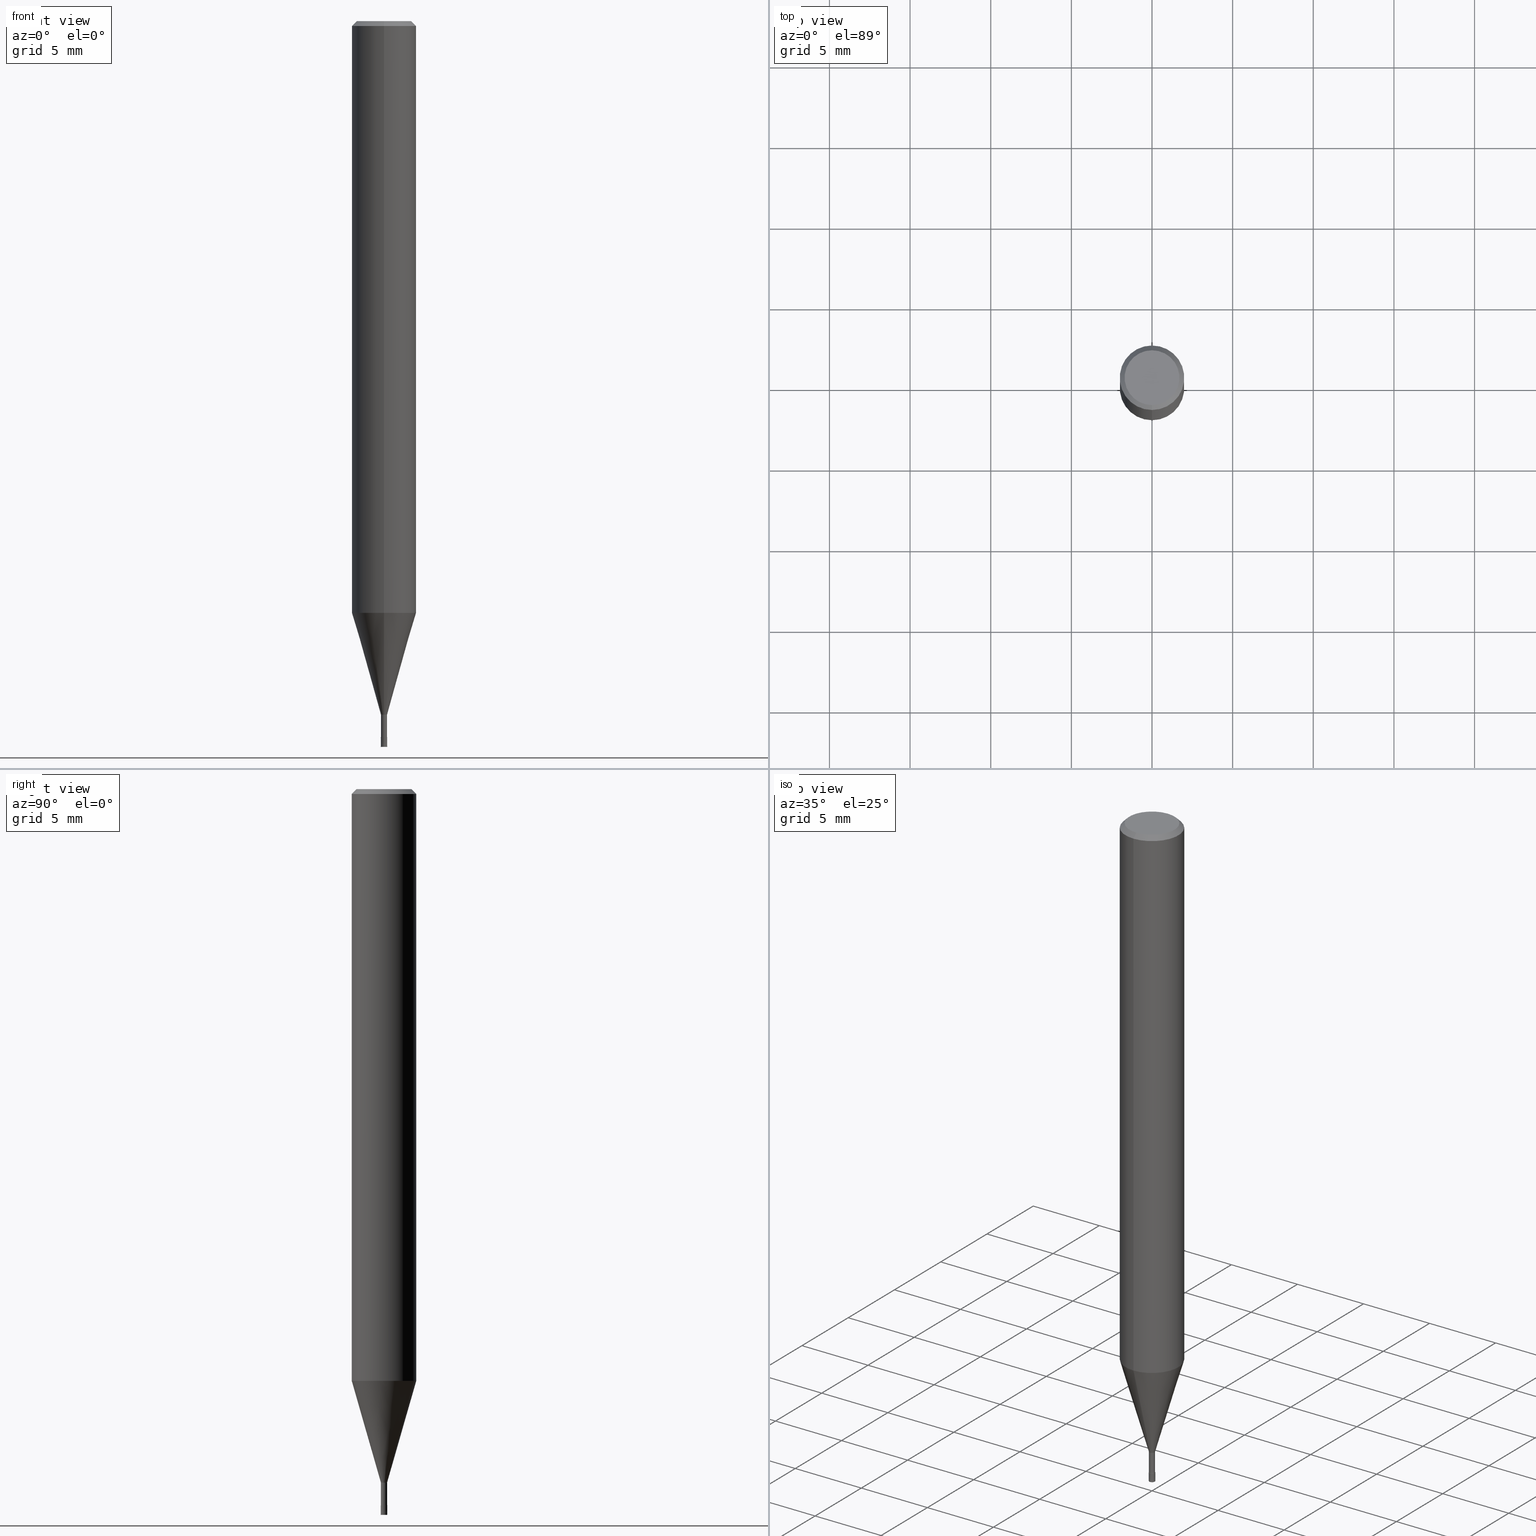
[diagram: canonical four-view strip — front | top / right | iso, engineering-drawing reading convention]
A machine part, canonical four-view strip (front | top / right | iso — engineering-drawing reading convention). The complete STEP part file that produces these views, byte-faithful:
ISO-10303-21;
HEADER;
FILE_DESCRIPTION(('no description'),'unknown implementation level');
FILE_NAME('HLS2004-020-Huellk.stp','  ',('CIMSOURCE GmbH'),('CADClick - KiM GmbH - www.kimweb.de'),'unknown preprocess','ACIS','unknown authorization');
FILE_SCHEMA(('automotive_design'));
ENDSEC;
DATA;
#1=MECHANICAL_DESIGN_GEOMETRIC_PRESENTATION_REPRESENTATION(' ',(#14,#15,#16,#17,#18,#19,#20,#21,#22,#23,#24,#25,#26,#27,#28,#29,#30,#31,#32,#33,#34,#35,#36,#37,#38,#39,#40,#41,#42,#43,#44,#45,#46,#47,#48,#49,#50,#51,#52,#53,#54,#55,#56,#57,#58,#59,#60,#61,#62,#63,#64,#65,#66,#67,#68,#69,#70,#71,#72),#10);
#2=PRODUCT_DEFINITION_CONTEXT('',#73,'design');
#3=APPLICATION_PROTOCOL_DEFINITION('INTERNATIONAL STANDARD','automotive_design',1994,#73);
#4=PRODUCT_CATEGORY_RELATIONSHIP('NONE','NONE',#74,#75);
#5=SHAPE_DEFINITION_REPRESENTATION(#76,#77);
#6=PRODUCT_DEFINITION_CONTEXT('',#78,'design');
#7=APPLICATION_PROTOCOL_DEFINITION('INTERNATIONAL STANDARD','automotive_design',1994,#78);
#8=PRODUCT_CATEGORY_RELATIONSHIP('NONE','NONE',#79,#80);
#9=SHAPE_DEFINITION_REPRESENTATION(#81,#82);
#10= (GEOMETRIC_REPRESENTATION_CONTEXT(3)GLOBAL_UNCERTAINTY_ASSIGNED_CONTEXT((#85))GLOBAL_UNIT_ASSIGNED_CONTEXT((#87,#88,#89))REPRESENTATION_CONTEXT('NONE','WORKSPACE'));
#14=STYLED_ITEM('',(#91),#92);
#15=STYLED_ITEM('',(#93),#94);
#16=STYLED_ITEM('',(#95),#96);
#17=STYLED_ITEM('',(#97),#98);
#18=STYLED_ITEM('',(#99),#100);
#19=STYLED_ITEM('',(#101),#102);
#20=STYLED_ITEM('',(#103),#104);
#21=STYLED_ITEM('',(#105),#106);
#22=STYLED_ITEM('',(#107),#108);
#23=STYLED_ITEM('',(#109),#110);
#24=STYLED_ITEM('',(#111),#112);
#25=STYLED_ITEM('',(#113),#114);
#26=STYLED_ITEM('',(#115),#116);
#27=STYLED_ITEM('',(#117),#118);
#28=STYLED_ITEM('',(#119),#120);
#29=STYLED_ITEM('',(#121),#122);
#30=STYLED_ITEM('',(#123),#124);
#31=STYLED_ITEM('',(#125),#126);
#32=STYLED_ITEM('',(#127),#128);
#33=STYLED_ITEM('',(#129),#130);
#34=STYLED_ITEM('',(#131),#132);
#35=STYLED_ITEM('',(#133),#134);
#36=STYLED_ITEM('',(#135),#136);
#37=STYLED_ITEM('',(#137),#138);
#38=STYLED_ITEM('',(#139),#140);
#39=STYLED_ITEM('',(#141),#142);
#40=STYLED_ITEM('',(#143),#144);
#41=STYLED_ITEM('',(#145),#146);
#42=STYLED_ITEM('',(#147),#148);
#43=STYLED_ITEM('',(#149),#150);
#44=STYLED_ITEM('',(#151),#152);
#45=STYLED_ITEM('',(#153),#154);
#46=STYLED_ITEM('',(#155),#156);
#47=STYLED_ITEM('',(#157),#158);
#48=STYLED_ITEM('',(#159),#160);
#49=STYLED_ITEM('',(#161),#162);
#50=STYLED_ITEM('',(#163),#164);
#51=STYLED_ITEM('',(#165),#166);
#52=STYLED_ITEM('',(#167),#168);
#53=STYLED_ITEM('',(#169),#170);
#54=STYLED_ITEM('',(#171),#172);
#55=STYLED_ITEM('',(#173),#174);
#56=STYLED_ITEM('',(#175),#176);
#57=STYLED_ITEM('',(#177),#178);
#58=STYLED_ITEM('',(#179),#180);
#59=STYLED_ITEM('',(#181),#182);
#60=STYLED_ITEM('',(#183),#184);
#61=STYLED_ITEM('',(#185),#186);
#62=STYLED_ITEM('',(#187),#188);
#63=STYLED_ITEM('',(#189),#190);
#64=STYLED_ITEM('',(#191),#192);
#65=STYLED_ITEM('',(#193),#194);
#66=STYLED_ITEM('',(#195),#196);
#67=STYLED_ITEM('',(#197),#198);
#68=STYLED_ITEM('',(#199),#200);
#69=STYLED_ITEM('',(#201),#202);
#70=STYLED_ITEM('',(#203),#204);
#71=STYLED_ITEM('',(#205),#206);
#72=STYLED_ITEM('',(#207),#208);
#73=APPLICATION_CONTEXT(' ');
#74=PRODUCT_CATEGORY('part','NONE');
#75=PRODUCT_RELATED_PRODUCT_CATEGORY('detail',' ',(#209));
#76=PRODUCT_DEFINITION_SHAPE('NONE','NONE',#210);
#77=ADVANCED_BREP_SHAPE_REPRESENTATION('1',(#96,#211),#10);
#78=APPLICATION_CONTEXT(' ');
#79=PRODUCT_CATEGORY('part','NONE');
#80=PRODUCT_RELATED_PRODUCT_CATEGORY('detail',' ',(#212));
#81=PRODUCT_DEFINITION_SHAPE('NONE','NONE',#213);
#82=ADVANCED_BREP_SHAPE_REPRESENTATION('2',(#198,#214),#10);
#85=UNCERTAINTY_MEASURE_WITH_UNIT(LENGTH_MEASURE(1.0E-006),#87,'','');
#87= (CONVERSION_BASED_UNIT('MILLIMETRE',#217)LENGTH_UNIT()NAMED_UNIT(#220));
#88= (NAMED_UNIT(#222)PLANE_ANGLE_UNIT()SI_UNIT($,.RADIAN.));
#89= (NAMED_UNIT(#222)SOLID_ANGLE_UNIT()SI_UNIT($,.STERADIAN.));
#91=PRESENTATION_STYLE_ASSIGNMENT((#228));
#92=VERTEX_POINT('',#229);
#93=PRESENTATION_STYLE_ASSIGNMENT((#230));
#94=EDGE_CURVE('',#206,#150,#231,.T.);
#95=PRESENTATION_STYLE_ASSIGNMENT((#232));
#96=MANIFOLD_SOLID_BREP('1',#233);
#97=PRESENTATION_STYLE_ASSIGNMENT((#234));
#98=ADVANCED_FACE('',(#235),#236,.T.);
#99=PRESENTATION_STYLE_ASSIGNMENT((#237));
#100=EDGE_CURVE('',#120,#92,#238,.T.);
#101=PRESENTATION_STYLE_ASSIGNMENT((#239));
#102=EDGE_CURVE('',#122,#182,#240,.T.);
#103=PRESENTATION_STYLE_ASSIGNMENT((#241));
#104=EDGE_CURVE('',#194,#146,#242,.T.);
#105=PRESENTATION_STYLE_ASSIGNMENT((#243));
#106=ADVANCED_FACE('',(#244),#245,.T.);
#107=PRESENTATION_STYLE_ASSIGNMENT((#246));
#108=ADVANCED_FACE('',(#247),#248,.T.);
#109=PRESENTATION_STYLE_ASSIGNMENT((#249));
#110=ADVANCED_FACE('',(#250,#251),#252,.T.);
#111=PRESENTATION_STYLE_ASSIGNMENT((#253));
#112=EDGE_CURVE('',#144,#152,#254,.T.);
#113=PRESENTATION_STYLE_ASSIGNMENT((#255));
#114=EDGE_CURVE('',#194,#184,#256,.T.);
#115=PRESENTATION_STYLE_ASSIGNMENT((#257));
#116=EDGE_CURVE('',#144,#196,#258,.T.);
#117=PRESENTATION_STYLE_ASSIGNMENT((#259));
#118=ADVANCED_FACE('',(#260),#261,.T.);
#119=PRESENTATION_STYLE_ASSIGNMENT((#262));
#120=VERTEX_POINT('',#263);
#121=PRESENTATION_STYLE_ASSIGNMENT((#264));
#122=VERTEX_POINT('',#265);
#123=PRESENTATION_STYLE_ASSIGNMENT((#266));
#124=EDGE_CURVE('',#196,#206,#267,.T.);
#125=PRESENTATION_STYLE_ASSIGNMENT((#268));
#126=EDGE_CURVE('',#182,#192,#269,.T.);
#127=PRESENTATION_STYLE_ASSIGNMENT((#270));
#128=EDGE_CURVE('',#92,#120,#271,.T.);
#129=PRESENTATION_STYLE_ASSIGNMENT((#272));
#130=EDGE_CURVE('',#166,#196,#273,.T.);
#131=PRESENTATION_STYLE_ASSIGNMENT((#274));
#132=EDGE_CURVE('',#208,#146,#275,.T.);
#133=PRESENTATION_STYLE_ASSIGNMENT((#276));
#134=EDGE_CURVE('',#192,#180,#277,.T.);
#135=PRESENTATION_STYLE_ASSIGNMENT((#278));
#136=ADVANCED_FACE('',(#279),#280,.T.);
#137=PRESENTATION_STYLE_ASSIGNMENT((#281));
#138=ADVANCED_FACE('',(#282),#283,.T.);
#139=PRESENTATION_STYLE_ASSIGNMENT((#284));
#140=ADVANCED_FACE('',(#285),#286,.T.);
#141=PRESENTATION_STYLE_ASSIGNMENT((#287));
#142=EDGE_CURVE('',#196,#166,#288,.T.);
#143=PRESENTATION_STYLE_ASSIGNMENT((#289));
#144=VERTEX_POINT('',#290);
#145=PRESENTATION_STYLE_ASSIGNMENT((#291));
#146=VERTEX_POINT('',#292);
#147=PRESENTATION_STYLE_ASSIGNMENT((#293));
#148=EDGE_CURVE('',#166,#152,#294,.T.);
#149=PRESENTATION_STYLE_ASSIGNMENT((#295));
#150=VERTEX_POINT('',#296);
#151=PRESENTATION_STYLE_ASSIGNMENT((#297));
#152=VERTEX_POINT('',#298);
#153=PRESENTATION_STYLE_ASSIGNMENT((#299));
#154=ADVANCED_FACE('',(#300),#301,.T.);
#155=PRESENTATION_STYLE_ASSIGNMENT((#302));
#156=EDGE_CURVE('',#192,#182,#303,.T.);
#157=PRESENTATION_STYLE_ASSIGNMENT((#304));
#158=EDGE_CURVE('',#180,#122,#305,.T.);
#159=PRESENTATION_STYLE_ASSIGNMENT((#306));
#160=EDGE_CURVE('',#150,#166,#307,.T.);
#161=PRESENTATION_STYLE_ASSIGNMENT((#308));
#162=EDGE_CURVE('',#180,#120,#309,.T.);
#163=PRESENTATION_STYLE_ASSIGNMENT((#310));
#164=ADVANCED_FACE('',(#311),#312,.T.);
#165=PRESENTATION_STYLE_ASSIGNMENT((#313));
#166=VERTEX_POINT('',#314);
#167=PRESENTATION_STYLE_ASSIGNMENT((#315));
#168=EDGE_CURVE('',#146,#194,#316,.T.);
#169=PRESENTATION_STYLE_ASSIGNMENT((#317));
#170=EDGE_CURVE('',#122,#180,#318,.T.);
#171=PRESENTATION_STYLE_ASSIGNMENT((#319));
#172=ADVANCED_FACE('',(#320),#321,.T.);
#173=PRESENTATION_STYLE_ASSIGNMENT((#322));
#174=EDGE_CURVE('',#208,#184,#323,.T.);
#175=PRESENTATION_STYLE_ASSIGNMENT((#324));
#176=EDGE_CURVE('',#184,#208,#325,.T.);
#177=PRESENTATION_STYLE_ASSIGNMENT((#326));
#178=EDGE_CURVE('',#92,#122,#327,.T.);
#179=PRESENTATION_STYLE_ASSIGNMENT((#328));
#180=VERTEX_POINT('',#329);
#181=PRESENTATION_STYLE_ASSIGNMENT((#330));
#182=VERTEX_POINT('',#331);
#183=PRESENTATION_STYLE_ASSIGNMENT((#332));
#184=VERTEX_POINT('',#333);
#185=PRESENTATION_STYLE_ASSIGNMENT((#334));
#186=EDGE_CURVE('',#152,#144,#335,.T.);
#187=PRESENTATION_STYLE_ASSIGNMENT((#336));
#188=EDGE_CURVE('',#150,#206,#337,.T.);
#189=PRESENTATION_STYLE_ASSIGNMENT((#338));
#190=ADVANCED_FACE('',(#339),#340,.T.);
#191=PRESENTATION_STYLE_ASSIGNMENT((#341));
#192=VERTEX_POINT('',#342);
#193=PRESENTATION_STYLE_ASSIGNMENT((#343));
#194=VERTEX_POINT('',#344);
#195=PRESENTATION_STYLE_ASSIGNMENT((#345));
#196=VERTEX_POINT('',#346);
#197=PRESENTATION_STYLE_ASSIGNMENT((#347));
#198=MANIFOLD_SOLID_BREP('2',#348);
#199=PRESENTATION_STYLE_ASSIGNMENT((#349));
#200=ADVANCED_FACE('',(#350),#351,.T.);
#201=PRESENTATION_STYLE_ASSIGNMENT((#352));
#202=ADVANCED_FACE('',(#353),#354,.T.);
#203=PRESENTATION_STYLE_ASSIGNMENT((#355));
#204=ADVANCED_FACE('',(#356),#357,.T.);
#205=PRESENTATION_STYLE_ASSIGNMENT((#358));
#206=VERTEX_POINT('',#359);
#207=PRESENTATION_STYLE_ASSIGNMENT((#360));
#208=VERTEX_POINT('',#361);
#209=PRODUCT('1','1','PART-1-DESC',(#362));
#210=PRODUCT_DEFINITION('NONE','NONE',#363,#2);
#211=AXIS2_PLACEMENT_3D('',#364,#365,#366);
#212=PRODUCT('2','2','PART-2-DESC',(#367));
#213=PRODUCT_DEFINITION('NONE','NONE',#368,#6);
#214=AXIS2_PLACEMENT_3D('',#369,#370,#371);
#217=LENGTH_MEASURE_WITH_UNIT(LENGTH_MEASURE(1.0),#372);
#220=DIMENSIONAL_EXPONENTS(1.0,0.0,0.0,0.0,0.0,0.0,0.0);
#222=DIMENSIONAL_EXPONENTS(0.0,0.0,0.0,0.0,0.0,0.0,0.0);
#228=POINT_STYLE(' ',#373,POSITIVE_LENGTH_MEASURE(1.0E-006),#374);
#229=CARTESIAN_POINT('',(2.32613976908561E-017,-0.18995,-44.4));
#230=CURVE_STYLE('',#375,POSITIVE_LENGTH_MEASURE(1.0E-006),#376);
#231=CIRCLE('',#377,2.0);
#232=SURFACE_STYLE_USAGE(.BOTH.,#378);
#233=CLOSED_SHELL('',(#200,#204,#106,#164,#110,#154,#172,#140,#138,#190,#108));
#234=SURFACE_STYLE_USAGE(.BOTH.,#379);
#235=FACE_OUTER_BOUND('',#380,.T.);
#236=CONICAL_SURFACE('',#381,0.19995,0.000166666665123485);
#237=CURVE_STYLE('',#382,POSITIVE_LENGTH_MEASURE(1.0E-006),#383);
#238=CIRCLE('',#384,0.18995);
#239=CURVE_STYLE('',#385,POSITIVE_LENGTH_MEASURE(1.0E-006),#386);
#240=LINE('',#387,#388);
#241=CURVE_STYLE('',#389,POSITIVE_LENGTH_MEASURE(1.0E-006),#390);
#242=CIRCLE('',#391,0.1999);
#243=SURFACE_STYLE_USAGE(.BOTH.,#392);
#244=FACE_OUTER_BOUND('',#393,.T.);
#245=CYLINDRICAL_SURFACE('',#394,2.0);
#246=SURFACE_STYLE_USAGE(.BOTH.,#395);
#247=FACE_OUTER_BOUND('',#396,.T.);
#248=PLANE('',#397);
#249=SURFACE_STYLE_USAGE(.BOTH.,#398);
#250=FACE_OUTER_BOUND('',#399,.T.);
#251=FACE_BOUND('',#400,.T.);
#252=PLANE('',#401);
#253=CURVE_STYLE('',#402,POSITIVE_LENGTH_MEASURE(1.0E-006),#403);
#254=CIRCLE('',#404,1.7);
#255=CURVE_STYLE('',#405,POSITIVE_LENGTH_MEASURE(1.0E-006),#406);
#256=LINE('',#407,#408);
#257=CURVE_STYLE('',#409,POSITIVE_LENGTH_MEASURE(1.0E-006),#410);
#258=LINE('',#411,#412);
#259=SURFACE_STYLE_USAGE(.BOTH.,#413);
#260=FACE_OUTER_BOUND('',#414,.T.);
#261=PLANE('',#415);
#262=POINT_STYLE(' ',#416,POSITIVE_LENGTH_MEASURE(1.0E-006),#417);
#263=CARTESIAN_POINT('',(0.0,0.18995,-44.4));
#264=POINT_STYLE(' ',#418,POSITIVE_LENGTH_MEASURE(1.0E-006),#419);
#265=CARTESIAN_POINT('',(2.3261397690856E-017,-0.18995,-43.0));
#266=CURVE_STYLE('',#420,POSITIVE_LENGTH_MEASURE(1.0E-006),#421);
#267=LINE('',#422,#423);
#268=CURVE_STYLE('',#424,POSITIVE_LENGTH_MEASURE(1.0E-006),#425);
#269=CIRCLE('',#426,1.99995);
#270=CURVE_STYLE('',#427,POSITIVE_LENGTH_MEASURE(1.0E-006),#428);
#271=CIRCLE('',#429,0.18995);
#272=CURVE_STYLE('',#430,POSITIVE_LENGTH_MEASURE(1.0E-006),#431);
#273=CIRCLE('',#432,2.0);
#274=CURVE_STYLE('',#433,POSITIVE_LENGTH_MEASURE(1.0E-006),#434);
#275=LINE('',#435,#436);
#276=CURVE_STYLE('',#437,POSITIVE_LENGTH_MEASURE(1.0E-006),#438);
#277=LINE('',#439,#440);
#278=SURFACE_STYLE_USAGE(.BOTH.,#441);
#279=FACE_OUTER_BOUND('',#442,.T.);
#280=CONICAL_SURFACE('',#443,0.19995,0.000166666665123485);
#281=SURFACE_STYLE_USAGE(.BOTH.,#444);
#282=FACE_OUTER_BOUND('',#445,.T.);
#283=CONICAL_SURFACE('',#446,1.09495,0.279261921280279);
#284=SURFACE_STYLE_USAGE(.BOTH.,#447);
#285=FACE_OUTER_BOUND('',#448,.T.);
#286=CYLINDRICAL_SURFACE('',#449,2.0);
#287=CURVE_STYLE('',#450,POSITIVE_LENGTH_MEASURE(1.0E-006),#451);
#288=CIRCLE('',#452,2.0);
#289=POINT_STYLE(' ',#453,POSITIVE_LENGTH_MEASURE(1.0E-006),#454);
#290=CARTESIAN_POINT('',(0.0,1.7,0.0));
#291=POINT_STYLE(' ',#455,POSITIVE_LENGTH_MEASURE(1.0E-006),#456);
#292=CARTESIAN_POINT('',(2.44798810129093E-017,-0.1999,-44.4));
#293=CURVE_STYLE('',#457,POSITIVE_LENGTH_MEASURE(1.0E-006),#458);
#294=LINE('',#459,#460);
#295=POINT_STYLE(' ',#461,POSITIVE_LENGTH_MEASURE(1.0E-006),#462);
#296=CARTESIAN_POINT('',(2.44921270764475E-016,-2.0,-36.688));
#297=POINT_STYLE(' ',#463,POSITIVE_LENGTH_MEASURE(1.0E-006),#464);
#298=CARTESIAN_POINT('',(2.08183080149804E-016,-1.7,0.0));
#299=SURFACE_STYLE_USAGE(.BOTH.,#465);
#300=FACE_OUTER_BOUND('',#466,.T.);
#301=PLANE('',#467);
#302=CURVE_STYLE('',#468,POSITIVE_LENGTH_MEASURE(1.0E-006),#469);
#303=CIRCLE('',#470,1.99995);
#304=CURVE_STYLE('',#471,POSITIVE_LENGTH_MEASURE(1.0E-006),#472);
#305=CIRCLE('',#473,0.18995);
#306=CURVE_STYLE('',#474,POSITIVE_LENGTH_MEASURE(1.0E-006),#475);
#307=LINE('',#476,#477);
#308=CURVE_STYLE('',#478,POSITIVE_LENGTH_MEASURE(1.0E-006),#479);
#309=LINE('',#480,#481);
#310=SURFACE_STYLE_USAGE(.BOTH.,#482);
#311=FACE_OUTER_BOUND('',#483,.T.);
#312=CONICAL_SURFACE('',#484,1.85,0.785398163397453);
#313=POINT_STYLE(' ',#485,POSITIVE_LENGTH_MEASURE(1.0E-006),#486);
#314=CARTESIAN_POINT('',(2.44921270764475E-016,-2.0,-0.299999999999997));
#315=CURVE_STYLE('',#487,POSITIVE_LENGTH_MEASURE(1.0E-006),#488);
#316=CIRCLE('',#489,0.1999);
#317=CURVE_STYLE('',#490,POSITIVE_LENGTH_MEASURE(1.0E-006),#491);
#318=CIRCLE('',#492,0.18995);
#319=SURFACE_STYLE_USAGE(.BOTH.,#493);
#320=FACE_OUTER_BOUND('',#494,.T.);
#321=CONICAL_SURFACE('',#495,1.85,0.785398163397453);
#322=CURVE_STYLE('',#496,POSITIVE_LENGTH_MEASURE(1.0E-006),#497);
#323=CIRCLE('',#498,0.2);
#324=CURVE_STYLE('',#499,POSITIVE_LENGTH_MEASURE(1.0E-006),#500);
#325=CIRCLE('',#501,0.2);
#326=CURVE_STYLE('',#502,POSITIVE_LENGTH_MEASURE(1.0E-006),#503);
#327=LINE('',#504,#505);
#328=POINT_STYLE(' ',#506,POSITIVE_LENGTH_MEASURE(1.0E-006),#507);
#329=CARTESIAN_POINT('',(0.0,0.18995,-43.0));
#330=POINT_STYLE(' ',#508,POSITIVE_LENGTH_MEASURE(1.0E-006),#509);
#331=CARTESIAN_POINT('',(2.44915147732706E-016,-1.99995,-36.688));
#332=POINT_STYLE(' ',#510,POSITIVE_LENGTH_MEASURE(1.0E-006),#511);
#333=CARTESIAN_POINT('',(0.0,0.2,-45.0));
#334=CURVE_STYLE('',#512,POSITIVE_LENGTH_MEASURE(1.0E-006),#513);
#335=CIRCLE('',#514,1.7);
#336=CURVE_STYLE('',#515,POSITIVE_LENGTH_MEASURE(1.0E-006),#516);
#337=CIRCLE('',#517,2.0);
#338=SURFACE_STYLE_USAGE(.BOTH.,#518);
#339=FACE_OUTER_BOUND('',#519,.T.);
#340=CYLINDRICAL_SURFACE('',#520,0.18995);
#341=POINT_STYLE(' ',#521,POSITIVE_LENGTH_MEASURE(1.0E-006),#522);
#342=CARTESIAN_POINT('',(0.0,1.99995,-36.688));
#343=POINT_STYLE(' ',#523,POSITIVE_LENGTH_MEASURE(1.0E-006),#524);
#344=CARTESIAN_POINT('',(0.0,0.1999,-44.4));
#345=POINT_STYLE(' ',#525,POSITIVE_LENGTH_MEASURE(1.0E-006),#526);
#346=CARTESIAN_POINT('',(0.0,2.0,-0.299999999999997));
#347=SURFACE_STYLE_USAGE(.BOTH.,#527);
#348=CLOSED_SHELL('',(#136,#202,#98,#118));
#349=SURFACE_STYLE_USAGE(.BOTH.,#528);
#350=FACE_OUTER_BOUND('',#529,.T.);
#351=CYLINDRICAL_SURFACE('',#530,0.18995);
#352=SURFACE_STYLE_USAGE(.BOTH.,#531);
#353=FACE_OUTER_BOUND('',#532,.T.);
#354=PLANE('',#533);
#355=SURFACE_STYLE_USAGE(.BOTH.,#534);
#356=FACE_OUTER_BOUND('',#535,.T.);
#357=CONICAL_SURFACE('',#536,1.09495,0.279261921280279);
#358=POINT_STYLE(' ',#537,POSITIVE_LENGTH_MEASURE(1.0E-006),#538);
#359=CARTESIAN_POINT('',(0.0,2.0,-36.688));
#360=POINT_STYLE(' ',#539,POSITIVE_LENGTH_MEASURE(1.0E-006),#540);
#361=CARTESIAN_POINT('',(2.44921270764476E-017,-0.2,-45.0));
#362=PRODUCT_CONTEXT('',#73,'mechanical');
#363=PRODUCT_DEFINITION_FORMATION_WITH_SPECIFIED_SOURCE(' ','NONE',#209,.NOT_KNOWN.);
#364=CARTESIAN_POINT('',(0.0,0.0,0.0));
#365=DIRECTION('',(0.0,0.0,1.0));
#366=DIRECTION('',(1.0,0.0,0.0));
#367=PRODUCT_CONTEXT('',#78,'mechanical');
#368=PRODUCT_DEFINITION_FORMATION_WITH_SPECIFIED_SOURCE(' ','NONE',#212,.NOT_KNOWN.);
#369=CARTESIAN_POINT('',(0.0,0.0,0.0));
#370=DIRECTION('',(0.0,0.0,1.0));
#371=DIRECTION('',(1.0,0.0,0.0));
#372= (NAMED_UNIT(#220)LENGTH_UNIT()SI_UNIT(.MILLI.,.METRE.));
#373=PRE_DEFINED_MARKER('');
#374=COLOUR_RGB('',0.498039215803146,0.498039215803146,0.498039215803146);
#375=DRAUGHTING_PRE_DEFINED_CURVE_FONT('continuous');
#376=COLOUR_RGB('',0.498039215803146,0.498039215803146,0.498039215803146);
#377=AXIS2_PLACEMENT_3D('',#542,#543,#544);
#378=SURFACE_SIDE_STYLE('',(#545));
#379=SURFACE_SIDE_STYLE('',(#546));
#380=EDGE_LOOP('',(#547,#548,#549,#550));
#381=AXIS2_PLACEMENT_3D('',#551,#552,#553);
#382=DRAUGHTING_PRE_DEFINED_CURVE_FONT('continuous');
#383=COLOUR_RGB('',0.498039215803146,0.498039215803146,0.498039215803146);
#384=AXIS2_PLACEMENT_3D('',#554,#555,#556);
#385=DRAUGHTING_PRE_DEFINED_CURVE_FONT('continuous');
#386=COLOUR_RGB('',0.498039215803146,0.498039215803146,0.498039215803146);
#387=CARTESIAN_POINT('',(1.34088272711781E-016,-1.09495,-39.844));
#388=VECTOR('',#557,1.0);
#389=DRAUGHTING_PRE_DEFINED_CURVE_FONT('continuous');
#390=COLOUR_RGB('',0.800000011920929,0.800000011920929,0.800000011920929);
#391=AXIS2_PLACEMENT_3D('',#558,#559,#560);
#392=SURFACE_SIDE_STYLE('',(#561));
#393=EDGE_LOOP('',(#562,#563,#564,#565));
#394=AXIS2_PLACEMENT_3D('',#566,#567,#568);
#395=SURFACE_SIDE_STYLE('',(#569));
#396=EDGE_LOOP('',(#570,#571));
#397=AXIS2_PLACEMENT_3D('',#572,#573,#574);
#398=SURFACE_SIDE_STYLE('',(#575));
#399=EDGE_LOOP('',(#576,#577));
#400=EDGE_LOOP('',(#578,#579));
#401=AXIS2_PLACEMENT_3D('',#580,#581,#582);
#402=DRAUGHTING_PRE_DEFINED_CURVE_FONT('continuous');
#403=COLOUR_RGB('',0.498039215803146,0.498039215803146,0.498039215803146);
#404=AXIS2_PLACEMENT_3D('',#583,#584,#585);
#405=DRAUGHTING_PRE_DEFINED_CURVE_FONT('continuous');
#406=COLOUR_RGB('',0.800000011920929,0.800000011920929,0.800000011920929);
#407=CARTESIAN_POINT('',(-2.44860040446784E-017,0.19995,-44.7));
#408=VECTOR('',#586,1.0);
#409=DRAUGHTING_PRE_DEFINED_CURVE_FONT('continuous');
#410=COLOUR_RGB('',0.498039215803146,0.498039215803146,0.498039215803146);
#411=CARTESIAN_POINT('',(-2.2655217545714E-016,1.85,-0.149999999999999));
#412=VECTOR('',#587,1.0);
#413=SURFACE_SIDE_STYLE('',(#588));
#414=EDGE_LOOP('',(#589,#590));
#415=AXIS2_PLACEMENT_3D('',#591,#592,#593);
#416=PRE_DEFINED_MARKER('');
#417=COLOUR_RGB('',0.498039215803146,0.498039215803146,0.498039215803146);
#418=PRE_DEFINED_MARKER('');
#419=COLOUR_RGB('',0.498039215803146,0.498039215803146,0.498039215803146);
#420=DRAUGHTING_PRE_DEFINED_CURVE_FONT('continuous');
#421=COLOUR_RGB('',0.498039215803146,0.498039215803146,0.498039215803146);
#422=CARTESIAN_POINT('',(-2.44921270764475E-016,2.0,-18.494));
#423=VECTOR('',#594,1.0);
#424=DRAUGHTING_PRE_DEFINED_CURVE_FONT('continuous');
#425=COLOUR_RGB('',0.498039215803146,0.498039215803146,0.498039215803146);
#426=AXIS2_PLACEMENT_3D('',#595,#596,#597);
#427=DRAUGHTING_PRE_DEFINED_CURVE_FONT('continuous');
#428=COLOUR_RGB('',0.498039215803146,0.498039215803146,0.498039215803146);
#429=AXIS2_PLACEMENT_3D('',#598,#599,#600);
#430=DRAUGHTING_PRE_DEFINED_CURVE_FONT('continuous');
#431=COLOUR_RGB('',0.498039215803146,0.498039215803146,0.498039215803146);
#432=AXIS2_PLACEMENT_3D('',#601,#602,#603);
#433=DRAUGHTING_PRE_DEFINED_CURVE_FONT('continuous');
#434=COLOUR_RGB('',0.800000011920929,0.800000011920929,0.800000011920929);
#435=CARTESIAN_POINT('',(2.44860040446784E-017,-0.19995,-44.7));
#436=VECTOR('',#604,1.0);
#437=DRAUGHTING_PRE_DEFINED_CURVE_FONT('continuous');
#438=COLOUR_RGB('',0.498039215803146,0.498039215803146,0.498039215803146);
#439=CARTESIAN_POINT('',(-1.34088272711781E-016,1.09495,-39.844));
#440=VECTOR('',#605,1.0);
#441=SURFACE_SIDE_STYLE('',(#606));
#442=EDGE_LOOP('',(#607,#608,#609,#610));
#443=AXIS2_PLACEMENT_3D('',#611,#612,#613);
#444=SURFACE_SIDE_STYLE('',(#614));
#445=EDGE_LOOP('',(#615,#616,#617,#618));
#446=AXIS2_PLACEMENT_3D('',#619,#620,#621);
#447=SURFACE_SIDE_STYLE('',(#622));
#448=EDGE_LOOP('',(#623,#624,#625,#626));
#449=AXIS2_PLACEMENT_3D('',#627,#628,#629);
#450=DRAUGHTING_PRE_DEFINED_CURVE_FONT('continuous');
#451=COLOUR_RGB('',0.498039215803146,0.498039215803146,0.498039215803146);
#452=AXIS2_PLACEMENT_3D('',#630,#631,#632);
#453=PRE_DEFINED_MARKER('');
#454=COLOUR_RGB('',0.498039215803146,0.498039215803146,0.498039215803146);
#455=PRE_DEFINED_MARKER('');
#456=COLOUR_RGB('',0.800000011920929,0.800000011920929,0.800000011920929);
#457=DRAUGHTING_PRE_DEFINED_CURVE_FONT('continuous');
#458=COLOUR_RGB('',0.498039215803146,0.498039215803146,0.498039215803146);
#459=CARTESIAN_POINT('',(2.2655217545714E-016,-1.85,-0.149999999999999));
#460=VECTOR('',#633,1.0);
#461=PRE_DEFINED_MARKER('');
#462=COLOUR_RGB('',0.498039215803146,0.498039215803146,0.498039215803146);
#463=PRE_DEFINED_MARKER('');
#464=COLOUR_RGB('',0.498039215803146,0.498039215803146,0.498039215803146);
#465=SURFACE_SIDE_STYLE('',(#634));
#466=EDGE_LOOP('',(#635,#636));
#467=AXIS2_PLACEMENT_3D('',#637,#638,#639);
#468=DRAUGHTING_PRE_DEFINED_CURVE_FONT('continuous');
#469=COLOUR_RGB('',0.498039215803146,0.498039215803146,0.498039215803146);
#470=AXIS2_PLACEMENT_3D('',#640,#641,#642);
#471=DRAUGHTING_PRE_DEFINED_CURVE_FONT('continuous');
#472=COLOUR_RGB('',0.498039215803146,0.498039215803146,0.498039215803146);
#473=AXIS2_PLACEMENT_3D('',#643,#644,#645);
#474=DRAUGHTING_PRE_DEFINED_CURVE_FONT('continuous');
#475=COLOUR_RGB('',0.498039215803146,0.498039215803146,0.498039215803146);
#476=CARTESIAN_POINT('',(2.44921270764475E-016,-2.0,-18.494));
#477=VECTOR('',#646,1.0);
#478=DRAUGHTING_PRE_DEFINED_CURVE_FONT('continuous');
#479=COLOUR_RGB('',0.498039215803146,0.498039215803146,0.498039215803146);
#480=CARTESIAN_POINT('',(-2.32613976908561E-017,0.18995,-43.7));
#481=VECTOR('',#647,1.0);
#482=SURFACE_SIDE_STYLE('',(#648));
#483=EDGE_LOOP('',(#649,#650,#651,#652));
#484=AXIS2_PLACEMENT_3D('',#653,#654,#655);
#485=PRE_DEFINED_MARKER('');
#486=COLOUR_RGB('',0.498039215803146,0.498039215803146,0.498039215803146);
#487=DRAUGHTING_PRE_DEFINED_CURVE_FONT('continuous');
#488=COLOUR_RGB('',0.800000011920929,0.800000011920929,0.800000011920929);
#489=AXIS2_PLACEMENT_3D('',#656,#657,#658);
#490=DRAUGHTING_PRE_DEFINED_CURVE_FONT('continuous');
#491=COLOUR_RGB('',0.498039215803146,0.498039215803146,0.498039215803146);
#492=AXIS2_PLACEMENT_3D('',#659,#660,#661);
#493=SURFACE_SIDE_STYLE('',(#662));
#494=EDGE_LOOP('',(#663,#664,#665,#666));
#495=AXIS2_PLACEMENT_3D('',#667,#668,#669);
#496=DRAUGHTING_PRE_DEFINED_CURVE_FONT('continuous');
#497=COLOUR_RGB('',0.800000011920929,0.800000011920929,0.800000011920929);
#498=AXIS2_PLACEMENT_3D('',#670,#671,#672);
#499=DRAUGHTING_PRE_DEFINED_CURVE_FONT('continuous');
#500=COLOUR_RGB('',0.800000011920929,0.800000011920929,0.800000011920929);
#501=AXIS2_PLACEMENT_3D('',#673,#674,#675);
#502=DRAUGHTING_PRE_DEFINED_CURVE_FONT('continuous');
#503=COLOUR_RGB('',0.498039215803146,0.498039215803146,0.498039215803146);
#504=CARTESIAN_POINT('',(2.32613976908561E-017,-0.18995,-43.7));
#505=VECTOR('',#676,1.0);
#506=PRE_DEFINED_MARKER('');
#507=COLOUR_RGB('',0.498039215803146,0.498039215803146,0.498039215803146);
#508=PRE_DEFINED_MARKER('');
#509=COLOUR_RGB('',0.498039215803146,0.498039215803146,0.498039215803146);
#510=PRE_DEFINED_MARKER('');
#511=COLOUR_RGB('',0.800000011920929,0.800000011920929,0.800000011920929);
#512=DRAUGHTING_PRE_DEFINED_CURVE_FONT('continuous');
#513=COLOUR_RGB('',0.498039215803146,0.498039215803146,0.498039215803146);
#514=AXIS2_PLACEMENT_3D('',#677,#678,#679);
#515=DRAUGHTING_PRE_DEFINED_CURVE_FONT('continuous');
#516=COLOUR_RGB('',0.498039215803146,0.498039215803146,0.498039215803146);
#517=AXIS2_PLACEMENT_3D('',#680,#681,#682);
#518=SURFACE_SIDE_STYLE('',(#683));
#519=EDGE_LOOP('',(#684,#685,#686,#687));
#520=AXIS2_PLACEMENT_3D('',#688,#689,#690);
#521=PRE_DEFINED_MARKER('');
#522=COLOUR_RGB('',0.498039215803146,0.498039215803146,0.498039215803146);
#523=PRE_DEFINED_MARKER('');
#524=COLOUR_RGB('',0.800000011920929,0.800000011920929,0.800000011920929);
#525=PRE_DEFINED_MARKER('');
#526=COLOUR_RGB('',0.498039215803146,0.498039215803146,0.498039215803146);
#527=SURFACE_SIDE_STYLE('',(#691));
#528=SURFACE_SIDE_STYLE('',(#692));
#529=EDGE_LOOP('',(#693,#694,#695,#696));
#530=AXIS2_PLACEMENT_3D('',#697,#698,#699);
#531=SURFACE_SIDE_STYLE('',(#700));
#532=EDGE_LOOP('',(#701,#702));
#533=AXIS2_PLACEMENT_3D('',#703,#704,#705);
#534=SURFACE_SIDE_STYLE('',(#706));
#535=EDGE_LOOP('',(#707,#708,#709,#710));
#536=AXIS2_PLACEMENT_3D('',#711,#712,#713);
#537=PRE_DEFINED_MARKER('');
#538=COLOUR_RGB('',0.498039215803146,0.498039215803146,0.498039215803146);
#539=PRE_DEFINED_MARKER('');
#540=COLOUR_RGB('',0.800000011920929,0.800000011920929,0.800000011920929);
#542=CARTESIAN_POINT('',(0.0,0.0,-36.688));
#543=DIRECTION('',(0.0,0.0,-1.0));
#544=DIRECTION('',(0.0,1.0,0.0));
#545=SURFACE_STYLE_FILL_AREA(#714);
#546=SURFACE_STYLE_FILL_AREA(#715);
#547=ORIENTED_EDGE('',*,*,#114,.T.);
#548=ORIENTED_EDGE('',*,*,#174,.F.);
#549=ORIENTED_EDGE('',*,*,#132,.T.);
#550=ORIENTED_EDGE('',*,*,#168,.T.);
#551=CARTESIAN_POINT('',(0.0,0.0,-44.7));
#552=DIRECTION('',(0.0,-0.0,-1.0));
#553=DIRECTION('',(0.0,1.0,0.0));
#554=CARTESIAN_POINT('',(0.0,0.0,-44.4));
#555=DIRECTION('',(0.0,0.0,-1.0));
#556=DIRECTION('',(0.0,1.0,0.0));
#557=DIRECTION('',(3.37558135426109E-017,-0.275646238787252,0.961259148743169));
#558=CARTESIAN_POINT('',(0.0,0.0,-44.4));
#559=DIRECTION('',(0.0,0.0,-1.0));
#560=DIRECTION('',(0.0,1.0,0.0));
#561=SURFACE_STYLE_FILL_AREA(#716);
#562=ORIENTED_EDGE('',*,*,#124,.F.);
#563=ORIENTED_EDGE('',*,*,#142,.T.);
#564=ORIENTED_EDGE('',*,*,#160,.F.);
#565=ORIENTED_EDGE('',*,*,#94,.F.);
#566=CARTESIAN_POINT('',(0.0,0.0,-18.494));
#567=DIRECTION('',(-0.0,-0.0,1.0));
#568=DIRECTION('',(0.0,1.0,0.0));
#569=SURFACE_STYLE_FILL_AREA(#717);
#570=ORIENTED_EDGE('',*,*,#100,.T.);
#571=ORIENTED_EDGE('',*,*,#128,.T.);
#572=CARTESIAN_POINT('',(0.0,0.094975,-44.4));
#573=DIRECTION('',(0.0,0.0,-1.0));
#574=DIRECTION('',(0.0,1.0,0.0));
#575=SURFACE_STYLE_FILL_AREA(#718);
#576=ORIENTED_EDGE('',*,*,#94,.T.);
#577=ORIENTED_EDGE('',*,*,#188,.T.);
#578=ORIENTED_EDGE('',*,*,#156,.F.);
#579=ORIENTED_EDGE('',*,*,#126,.F.);
#580=CARTESIAN_POINT('',(0.0,1.0,-36.688));
#581=DIRECTION('',(0.0,0.0,-1.0));
#582=DIRECTION('',(0.0,1.0,0.0));
#583=CARTESIAN_POINT('',(0.0,0.0,0.0));
#584=DIRECTION('',(0.0,0.0,-1.0));
#585=DIRECTION('',(0.0,1.0,0.0));
#586=DIRECTION('',(-2.04101056135694E-020,0.00016666666435188,-0.999999986111112));
#587=DIRECTION('',(-8.6592745707194E-017,0.707106781186551,-0.707106781186544));
#588=SURFACE_STYLE_FILL_AREA(#719);
#589=ORIENTED_EDGE('',*,*,#176,.T.);
#590=ORIENTED_EDGE('',*,*,#174,.T.);
#591=CARTESIAN_POINT('',(0.0,0.0975,-45.0));
#592=DIRECTION('',(0.0,0.0,-1.0));
#593=DIRECTION('',(0.0,1.0,0.0));
#594=DIRECTION('',(0.0,0.0,-1.0));
#595=CARTESIAN_POINT('',(0.0,0.0,-36.688));
#596=DIRECTION('',(0.0,0.0,-1.0));
#597=DIRECTION('',(0.0,1.0,0.0));
#598=CARTESIAN_POINT('',(0.0,0.0,-44.4));
#599=DIRECTION('',(0.0,0.0,-1.0));
#600=DIRECTION('',(0.0,1.0,0.0));
#601=CARTESIAN_POINT('',(0.0,0.0,-0.299999999999997));
#602=DIRECTION('',(0.0,0.0,-1.0));
#603=DIRECTION('',(0.0,1.0,0.0));
#604=DIRECTION('',(-2.04101056135694E-020,0.00016666666435188,0.999999986111112));
#605=DIRECTION('',(3.37558135426109E-017,-0.275646238787252,-0.961259148743169));
#606=SURFACE_STYLE_FILL_AREA(#720);
#607=ORIENTED_EDGE('',*,*,#114,.F.);
#608=ORIENTED_EDGE('',*,*,#104,.T.);
#609=ORIENTED_EDGE('',*,*,#132,.F.);
#610=ORIENTED_EDGE('',*,*,#176,.F.);
#611=CARTESIAN_POINT('',(0.0,0.0,-44.7));
#612=DIRECTION('',(0.0,-0.0,-1.0));
#613=DIRECTION('',(0.0,1.0,0.0));
#614=SURFACE_STYLE_FILL_AREA(#721);
#615=ORIENTED_EDGE('',*,*,#134,.T.);
#616=ORIENTED_EDGE('',*,*,#170,.F.);
#617=ORIENTED_EDGE('',*,*,#102,.T.);
#618=ORIENTED_EDGE('',*,*,#126,.T.);
#619=CARTESIAN_POINT('',(0.0,0.0,-39.844));
#620=DIRECTION('',(-0.0,-0.0,1.0));
#621=DIRECTION('',(0.0,1.0,0.0));
#622=SURFACE_STYLE_FILL_AREA(#722);
#623=ORIENTED_EDGE('',*,*,#124,.T.);
#624=ORIENTED_EDGE('',*,*,#188,.F.);
#625=ORIENTED_EDGE('',*,*,#160,.T.);
#626=ORIENTED_EDGE('',*,*,#130,.T.);
#627=CARTESIAN_POINT('',(0.0,0.0,-18.494));
#628=DIRECTION('',(-0.0,-0.0,1.0));
#629=DIRECTION('',(0.0,1.0,0.0));
#630=CARTESIAN_POINT('',(0.0,0.0,-0.299999999999997));
#631=DIRECTION('',(0.0,0.0,-1.0));
#632=DIRECTION('',(0.0,1.0,0.0));
#633=DIRECTION('',(-8.6592745707194E-017,0.707106781186551,0.707106781186544));
#634=SURFACE_STYLE_FILL_AREA(#723);
#635=ORIENTED_EDGE('',*,*,#112,.F.);
#636=ORIENTED_EDGE('',*,*,#186,.F.);
#637=CARTESIAN_POINT('',(0.0,0.85,0.0));
#638=DIRECTION('',(-0.0,0.0,1.0));
#639=DIRECTION('',(0.0,-1.0,0.0));
#640=CARTESIAN_POINT('',(0.0,0.0,-36.688));
#641=DIRECTION('',(0.0,0.0,-1.0));
#642=DIRECTION('',(0.0,1.0,0.0));
#643=CARTESIAN_POINT('',(0.0,0.0,-43.0));
#644=DIRECTION('',(0.0,0.0,-1.0));
#645=DIRECTION('',(0.0,1.0,0.0));
#646=DIRECTION('',(-0.0,-0.0,1.0));
#647=DIRECTION('',(0.0,0.0,-1.0));
#648=SURFACE_STYLE_FILL_AREA(#724);
#649=ORIENTED_EDGE('',*,*,#116,.F.);
#650=ORIENTED_EDGE('',*,*,#112,.T.);
#651=ORIENTED_EDGE('',*,*,#148,.F.);
#652=ORIENTED_EDGE('',*,*,#142,.F.);
#653=CARTESIAN_POINT('',(0.0,0.0,-0.149999999999999));
#654=DIRECTION('',(0.0,-0.0,-1.0));
#655=DIRECTION('',(0.0,1.0,0.0));
#656=CARTESIAN_POINT('',(0.0,0.0,-44.4));
#657=DIRECTION('',(0.0,0.0,-1.0));
#658=DIRECTION('',(0.0,1.0,0.0));
#659=CARTESIAN_POINT('',(0.0,0.0,-43.0));
#660=DIRECTION('',(0.0,0.0,-1.0));
#661=DIRECTION('',(0.0,1.0,0.0));
#662=SURFACE_STYLE_FILL_AREA(#725);
#663=ORIENTED_EDGE('',*,*,#116,.T.);
#664=ORIENTED_EDGE('',*,*,#130,.F.);
#665=ORIENTED_EDGE('',*,*,#148,.T.);
#666=ORIENTED_EDGE('',*,*,#186,.T.);
#667=CARTESIAN_POINT('',(0.0,0.0,-0.149999999999999));
#668=DIRECTION('',(0.0,-0.0,-1.0));
#669=DIRECTION('',(0.0,1.0,0.0));
#670=CARTESIAN_POINT('',(0.0,0.0,-45.0));
#671=DIRECTION('',(0.0,0.0,-1.0));
#672=DIRECTION('',(0.0,1.0,0.0));
#673=CARTESIAN_POINT('',(0.0,0.0,-45.0));
#674=DIRECTION('',(0.0,0.0,-1.0));
#675=DIRECTION('',(0.0,1.0,0.0));
#676=DIRECTION('',(-0.0,-0.0,1.0));
#677=CARTESIAN_POINT('',(0.0,0.0,0.0));
#678=DIRECTION('',(0.0,0.0,-1.0));
#679=DIRECTION('',(0.0,1.0,0.0));
#680=CARTESIAN_POINT('',(0.0,0.0,-36.688));
#681=DIRECTION('',(0.0,0.0,-1.0));
#682=DIRECTION('',(0.0,1.0,0.0));
#683=SURFACE_STYLE_FILL_AREA(#726);
#684=ORIENTED_EDGE('',*,*,#162,.T.);
#685=ORIENTED_EDGE('',*,*,#128,.F.);
#686=ORIENTED_EDGE('',*,*,#178,.T.);
#687=ORIENTED_EDGE('',*,*,#170,.T.);
#688=CARTESIAN_POINT('',(0.0,0.0,-43.7));
#689=DIRECTION('',(-0.0,-0.0,1.0));
#690=DIRECTION('',(0.0,1.0,0.0));
#691=SURFACE_STYLE_FILL_AREA(#727);
#692=SURFACE_STYLE_FILL_AREA(#728);
#693=ORIENTED_EDGE('',*,*,#162,.F.);
#694=ORIENTED_EDGE('',*,*,#158,.T.);
#695=ORIENTED_EDGE('',*,*,#178,.F.);
#696=ORIENTED_EDGE('',*,*,#100,.F.);
#697=CARTESIAN_POINT('',(0.0,0.0,-43.7));
#698=DIRECTION('',(-0.0,-0.0,1.0));
#699=DIRECTION('',(0.0,1.0,0.0));
#700=SURFACE_STYLE_FILL_AREA(#729);
#701=ORIENTED_EDGE('',*,*,#104,.F.);
#702=ORIENTED_EDGE('',*,*,#168,.F.);
#703=CARTESIAN_POINT('',(0.0,0.09995,-44.4));
#704=DIRECTION('',(-0.0,0.0,1.0));
#705=DIRECTION('',(0.0,-1.0,0.0));
#706=SURFACE_STYLE_FILL_AREA(#730);
#707=ORIENTED_EDGE('',*,*,#134,.F.);
#708=ORIENTED_EDGE('',*,*,#156,.T.);
#709=ORIENTED_EDGE('',*,*,#102,.F.);
#710=ORIENTED_EDGE('',*,*,#158,.F.);
#711=CARTESIAN_POINT('',(0.0,0.0,-39.844));
#712=DIRECTION('',(-0.0,-0.0,1.0));
#713=DIRECTION('',(0.0,1.0,0.0));
#714=FILL_AREA_STYLE('',(#731));
#715=FILL_AREA_STYLE('',(#732));
#716=FILL_AREA_STYLE('',(#733));
#717=FILL_AREA_STYLE('',(#734));
#718=FILL_AREA_STYLE('',(#735));
#719=FILL_AREA_STYLE('',(#736));
#720=FILL_AREA_STYLE('',(#737));
#721=FILL_AREA_STYLE('',(#738));
#722=FILL_AREA_STYLE('',(#739));
#723=FILL_AREA_STYLE('',(#740));
#724=FILL_AREA_STYLE('',(#741));
#725=FILL_AREA_STYLE('',(#742));
#726=FILL_AREA_STYLE('',(#743));
#727=FILL_AREA_STYLE('',(#744));
#728=FILL_AREA_STYLE('',(#745));
#729=FILL_AREA_STYLE('',(#746));
#730=FILL_AREA_STYLE('',(#747));
#731=FILL_AREA_STYLE_COLOUR('',#748);
#732=FILL_AREA_STYLE_COLOUR('',#749);
#733=FILL_AREA_STYLE_COLOUR('',#750);
#734=FILL_AREA_STYLE_COLOUR('',#751);
#735=FILL_AREA_STYLE_COLOUR('',#752);
#736=FILL_AREA_STYLE_COLOUR('',#753);
#737=FILL_AREA_STYLE_COLOUR('',#754);
#738=FILL_AREA_STYLE_COLOUR('',#755);
#739=FILL_AREA_STYLE_COLOUR('',#756);
#740=FILL_AREA_STYLE_COLOUR('',#757);
#741=FILL_AREA_STYLE_COLOUR('',#758);
#742=FILL_AREA_STYLE_COLOUR('',#759);
#743=FILL_AREA_STYLE_COLOUR('',#760);
#744=FILL_AREA_STYLE_COLOUR('',#761);
#745=FILL_AREA_STYLE_COLOUR('',#762);
#746=FILL_AREA_STYLE_COLOUR('',#763);
#747=FILL_AREA_STYLE_COLOUR('',#764);
#748=COLOUR_RGB('',0.498039215803146,0.498039215803146,0.498039215803146);
#749=COLOUR_RGB('',0.800000011920929,0.800000011920929,0.800000011920929);
#750=COLOUR_RGB('',0.498039215803146,0.498039215803146,0.498039215803146);
#751=COLOUR_RGB('',0.498039215803146,0.498039215803146,0.498039215803146);
#752=COLOUR_RGB('',0.498039215803146,0.498039215803146,0.498039215803146);
#753=COLOUR_RGB('',0.800000011920929,0.800000011920929,0.800000011920929);
#754=COLOUR_RGB('',0.800000011920929,0.800000011920929,0.800000011920929);
#755=COLOUR_RGB('',0.498039215803146,0.498039215803146,0.498039215803146);
#756=COLOUR_RGB('',0.498039215803146,0.498039215803146,0.498039215803146);
#757=COLOUR_RGB('',0.498039215803146,0.498039215803146,0.498039215803146);
#758=COLOUR_RGB('',0.498039215803146,0.498039215803146,0.498039215803146);
#759=COLOUR_RGB('',0.498039215803146,0.498039215803146,0.498039215803146);
#760=COLOUR_RGB('',0.498039215803146,0.498039215803146,0.498039215803146);
#761=COLOUR_RGB('',0.800000011920929,0.800000011920929,0.800000011920929);
#762=COLOUR_RGB('',0.498039215803146,0.498039215803146,0.498039215803146);
#763=COLOUR_RGB('',0.800000011920929,0.800000011920929,0.800000011920929);
#764=COLOUR_RGB('',0.498039215803146,0.498039215803146,0.498039215803146);
#765=AXIS2_PLACEMENT_3D('PCS',#766,#767,#768);
#766=CARTESIAN_POINT('',(0.0,0.0,0.0));
#767=DIRECTION('',(0.0,0.0,1.0));
#768=DIRECTION('',(1.0,0.0,0.0));
#769=AXIS2_PLACEMENT_3D('CIP',#770,#771,#772);
#770=CARTESIAN_POINT('',(0.0,0.0,-45.0));
#771=DIRECTION('',(0.0,0.0,1.0));
#772=DIRECTION('',(1.0,0.0,0.0));
#773=AXIS2_PLACEMENT_3D('CRP',#774,#775,#776);
#774=CARTESIAN_POINT('',(-0.2,0.0,-45.0));
#775=DIRECTION('',(0.0,0.0,1.0));
#776=DIRECTION('',(1.0,0.0,0.0));
#777=AXIS2_PLACEMENT_3D('MCS',#778,#779,#780);
#778=CARTESIAN_POINT('',(0.0,0.0,-36.688));
#779=DIRECTION('',(0.0,0.0,1.0));
#780=DIRECTION('',(1.0,0.0,0.0));
#781=CONSTRUCTIVE_GEOMETRY_REPRESENTATION_RELATIONSHIP('coordinate systems',$,#77,#782);
#782=CONSTRUCTIVE_GEOMETRY_REPRESENTATION('coordinate systems',(#765,#769,#773,#777),#10);
ENDSEC;
END-ISO-10303-21;
